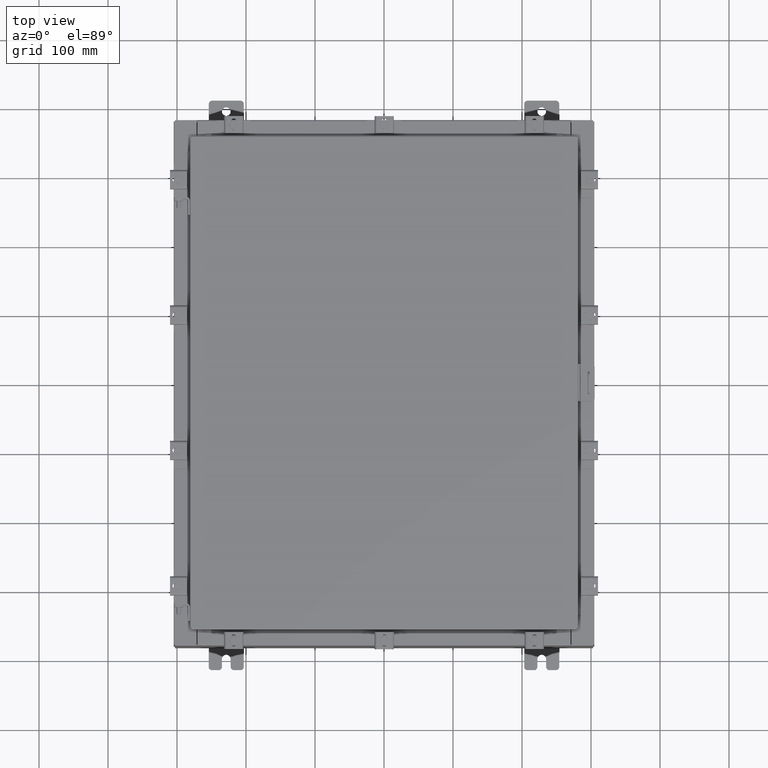
[diagram: clean part render]
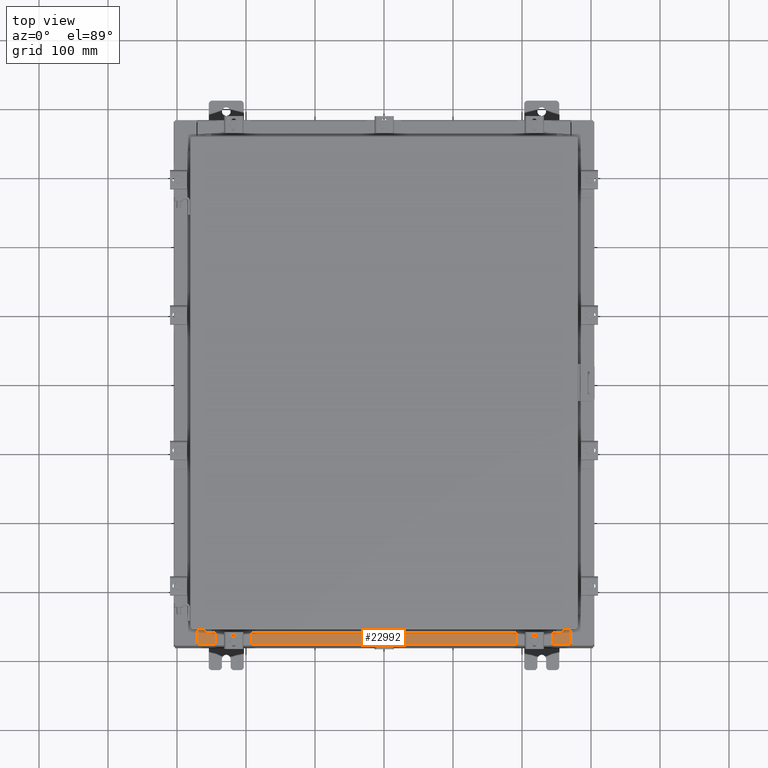
[diagram: same view with one face highlighted and labeled with its STEP entity id]
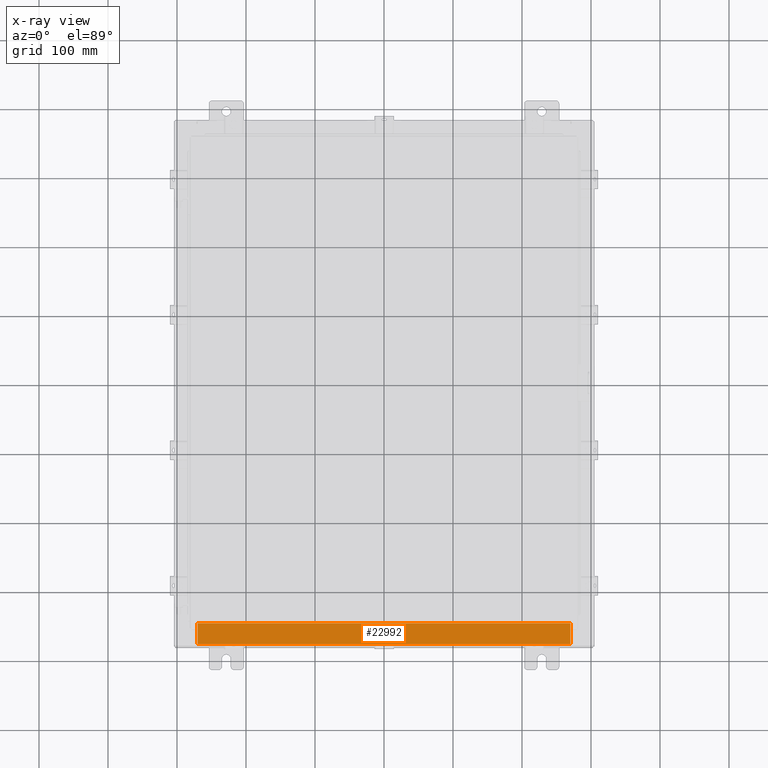
[diagram: x-ray of the same camera — body ghosted, the highlighted face saturated]
A machine part, top view. The second image highlights one B-rep face of the part: STEP entity #22992.
The next image is the same camera in x-ray: the body ghosted, the highlighted face saturated — about 0% of this face is hidden behind the body in this view.
In plain terms, the highlighted planar face has unit normal (-0, -0, 1).
Its self-contained STEP definition (entity closure, byte-faithful):
#495 = CARTESIAN_POINT ( 'NONE',  ( -2.252313287748606700E-018, -0.08770000000000000000, 4.000000000000000900 ) ) ;
#2011 = VERTEX_POINT ( 'NONE', #20904 ) ;
#2049 = AXIS2_PLACEMENT_3D ( 'NONE', #12740, #21778, #11021 ) ;
#2386 = EDGE_LOOP ( 'NONE', ( #5387, #17341, #9618, #9703 ) ) ;
#2459 = CARTESIAN_POINT ( 'NONE',  ( 10.63720000000000200, -1.300299999999999800, 4.000000000000004400 ) ) ;
#3103 = LINE ( 'NONE', #2459, #12008 ) ;
#3839 = CARTESIAN_POINT ( 'NONE',  ( 10.63720000000000400, -0.08769999999999965300, 4.000000000000000000 ) ) ;
#4242 = DIRECTION ( 'NONE',  ( -0.0000000000000000000, -1.000000000000000000, 3.566381192773190000E-015 ) ) ;
#5387 = ORIENTED_EDGE ( 'NONE', *, *, #22751, .F. ) ;
#5591 = VERTEX_POINT ( 'NONE', #3839 ) ;
#6680 = CARTESIAN_POINT ( 'NONE',  ( -10.63720000000000200, -0.07469999999999973900, 4.000000000000000000 ) ) ;
#8309 = FACE_OUTER_BOUND ( 'NONE', #2386, .T. ) ;
#8479 = DIRECTION ( 'NONE',  ( -0.0000000000000000000, 1.000000000000000000, -3.566381192773190000E-015 ) ) ;
#9445 = DIRECTION ( 'NONE',  ( -1.000000000000000000, 2.568202152506545800E-017, -9.159187855938968600E-032 ) ) ;
#9618 = ORIENTED_EDGE ( 'NONE', *, *, #20896, .F. ) ;
#9703 = ORIENTED_EDGE ( 'NONE', *, *, #23104, .T. ) ;
#10803 = VECTOR ( 'NONE', #9445, 39.37007874015748100 ) ;
#11021 = DIRECTION ( 'NONE',  ( 0.0000000000000000000, -1.000000000000000000, 3.566381192773190000E-015 ) ) ;
#11360 = LINE ( 'NONE', #495, #10803 ) ;
#11374 = CARTESIAN_POINT ( 'NONE',  ( -10.63720000000000200, -1.287299999999999200, 4.000000000000004400 ) ) ;
#11796 = CARTESIAN_POINT ( 'NONE',  ( 10.63720000000000200, -1.287299999999999900, 4.000000000000004400 ) ) ;
#12008 = VECTOR ( 'NONE', #4242, 39.37007874015748100 ) ;
#12554 = VECTOR ( 'NONE', #21757, 39.37007874015748100 ) ;
#12740 = CARTESIAN_POINT ( 'NONE',  ( 0.0000000000000000000, 1.425992975200418500E-014, 4.000000000000000000 ) ) ;
#12776 = VECTOR ( 'NONE', #8479, 39.37007874015748100 ) ;
#14317 = VERTEX_POINT ( 'NONE', #11374 ) ;
#14602 = CARTESIAN_POINT ( 'NONE',  ( 10.63720000000000400, -1.287299999999999900, 4.000000000000003600 ) ) ;
#16367 = PLANE ( 'NONE',  #2049 ) ;
#17341 = ORIENTED_EDGE ( 'NONE', *, *, #21366, .F. ) ;
#17585 = VERTEX_POINT ( 'NONE', #11796 ) ;
#20896 = EDGE_CURVE ( 'NONE', #5591, #17585, #3103, .T. ) ;
#20904 = CARTESIAN_POINT ( 'NONE',  ( -10.63720000000000200, -0.08770000000000000000, 4.000000000000000000 ) ) ;
#21366 = EDGE_CURVE ( 'NONE', #17585, #14317, #22114, .T. ) ;
#21757 = DIRECTION ( 'NONE',  ( -1.000000000000000000, 0.0000000000000000000, 0.0000000000000000000 ) ) ;
#21776 = LINE ( 'NONE', #6680, #12776 ) ;
#21778 = DIRECTION ( 'NONE',  ( 0.0000000000000000000, 3.566381192773190000E-015, 1.000000000000000000 ) ) ;
#22114 = LINE ( 'NONE', #14602, #12554 ) ;
#22751 = EDGE_CURVE ( 'NONE', #14317, #2011, #21776, .T. ) ;
#22992 = ADVANCED_FACE ( 'NONE', ( #8309 ), #16367, .T. ) ;
#23104 = EDGE_CURVE ( 'NONE', #5591, #2011, #11360, .T. ) ;